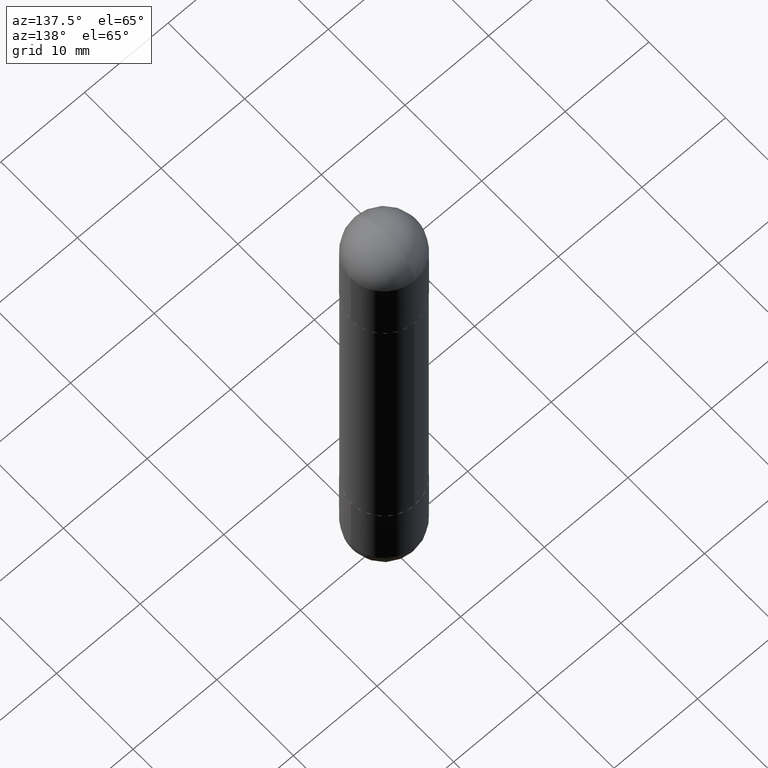
[diagram: clean part render]
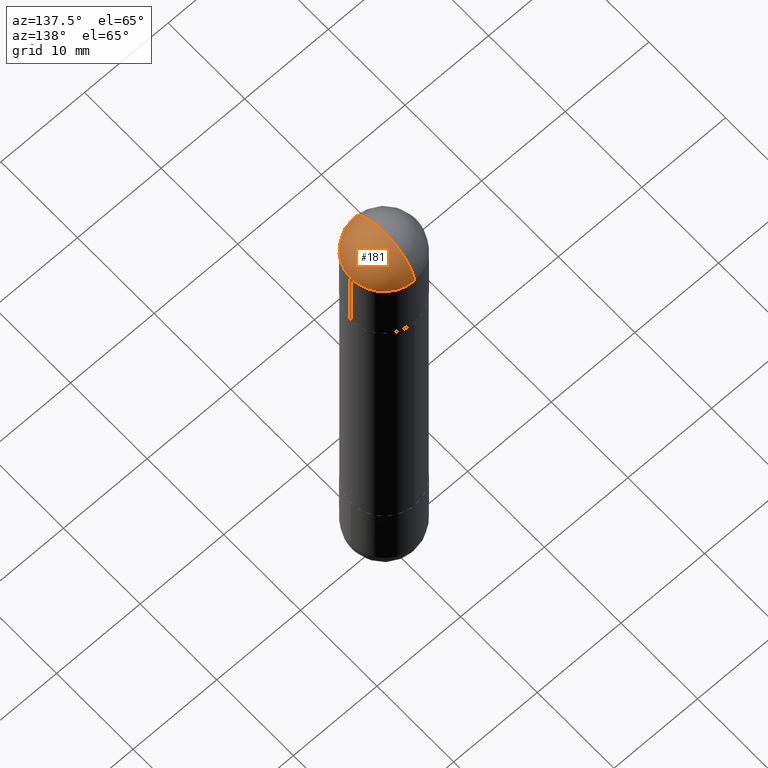
[diagram: same view with one face highlighted and labeled with its STEP entity id]
A machine part, auxiliary view. The second image highlights one B-rep face of the part: STEP entity #181.
In plain terms, the highlighted spherical surface has radius 3.9688 mm.
Its self-contained STEP definition (entity closure, byte-faithful):
#14 = EDGE_LOOP ( 'NONE', ( #188, #375, #128, #423 ) ) ;
#15 = DIRECTION ( 'NONE',  ( -1.000000000000000000, 6.982962677686265922E-15, 4.883557194083112340E-29 ) ) ;
#36 = DIRECTION ( 'NONE',  ( 2.445468806185136597E-29, -3.491481338843145583E-15, 1.000000000000000000 ) ) ;
#45 = CARTESIAN_POINT ( 'NONE',  ( 5.400447736582527652E-29, -8.657341756053672891E-15, -0.1562500000000005551 ) ) ;
#108 = CARTESIAN_POINT ( 'NONE',  ( -1.071952812151746981E-15, -0.1562500000000085487, -0.1562500000000011102 ) ) ;
#128 = ORIENTED_EDGE ( 'NONE', *, *, #641, .T. ) ;
#130 = VERTEX_POINT ( 'NONE', #722 ) ;
#132 = CIRCLE ( 'NONE', #249, 0.1562500000000000000 ) ;
#140 = CARTESIAN_POINT ( 'NONE',  ( 5.400447736582527652E-29, -8.657341756053672891E-15, -0.1562500000000005551 ) ) ;
#164 = DIRECTION ( 'NONE',  ( 6.982962677686265922E-15, 1.000000000000000000, 3.496765431890251398E-15 ) ) ;
#181 = ADVANCED_FACE ( 'NONE', ( #599 ), #603, .T. ) ;
#186 = VERTEX_POINT ( 'NONE', #108 ) ;
#188 = ORIENTED_EDGE ( 'NONE', *, *, #424, .F. ) ;
#194 = DIRECTION ( 'NONE',  ( 6.860497997771530774E-15, 1.000000000000000000, 0.000000000000000000 ) ) ;
#245 = DIRECTION ( 'NONE',  ( 2.445468806185136597E-29, -3.491481338843145583E-15, 1.000000000000000000 ) ) ;
#249 = AXIS2_PLACEMENT_3D ( 'NONE', #737, #245, #546 ) ;
#288 = CARTESIAN_POINT ( 'NONE',  ( 0.1562500000000000000, -8.674148951188436448E-15, -0.1562500000000005551 ) ) ;
#338 = CARTESIAN_POINT ( 'NONE',  ( 1.091087918388535577E-15, 0.1562499999999916733, -0.1562500000000000000 ) ) ;
#375 = ORIENTED_EDGE ( 'NONE', *, *, #548, .T. ) ;
#390 = CIRCLE ( 'NONE', #594, 0.1562500000000002498 ) ;
#423 = ORIENTED_EDGE ( 'NONE', *, *, #760, .T. ) ;
#424 = EDGE_CURVE ( 'NONE', #130, #686, #452, .T. ) ;
#452 = CIRCLE ( 'NONE', #529, 0.1562500000000002498 ) ;
#508 = CIRCLE ( 'NONE', #782, 0.1562500000000000000 ) ;
#529 = AXIS2_PLACEMENT_3D ( 'NONE', #691, #15, #633 ) ;
#546 = DIRECTION ( 'NONE',  ( 1.000000000000000000, -6.982962677686262766E-15, 0.000000000000000000 ) ) ;
#548 = EDGE_CURVE ( 'NONE', #130, #186, #390, .T. ) ;
#564 = VERTEX_POINT ( 'NONE', #288 ) ;
#576 = DIRECTION ( 'NONE',  ( 1.000000000000000000, -6.860497997771530774E-15, -4.840798879624142912E-29 ) ) ;
#584 = AXIS2_PLACEMENT_3D ( 'NONE', #45, #729, #164 ) ;
#594 = AXIS2_PLACEMENT_3D ( 'NONE', #140, #576, #194 ) ;
#599 = FACE_OUTER_BOUND ( 'NONE', #14, .T. ) ;
#603 = SPHERICAL_SURFACE ( 'NONE', #584, 0.1562500000000002498 ) ;
#633 = DIRECTION ( 'NONE',  ( -6.982962677686265922E-15, -1.000000000000000000, 0.000000000000000000 ) ) ;
#641 = EDGE_CURVE ( 'NONE', #186, #564, #508, .T. ) ;
#686 = VERTEX_POINT ( 'NONE', #338 ) ;
#691 = CARTESIAN_POINT ( 'NONE',  ( 5.400447736582527652E-29, -8.657341756053672891E-15, -0.1562500000000005551 ) ) ;
#721 = DIRECTION ( 'NONE',  ( 1.000000000000000000, -6.982962677686262766E-15, 0.000000000000000000 ) ) ;
#722 = CARTESIAN_POINT ( 'NONE',  ( 5.789233224183170584E-29, -9.193318162129576161E-15, -3.073328992872296367E-16 ) ) ;
#729 = DIRECTION ( 'NONE',  ( 1.000000000000000000, -6.982962677686265922E-15, -4.883557194083112340E-29 ) ) ;
#737 = CARTESIAN_POINT ( 'NONE',  ( 5.731567514496413899E-29, -8.183159387913622595E-15, -0.1562500000000005551 ) ) ;
#760 = EDGE_CURVE ( 'NONE', #564, #686, #132, .T. ) ;
#782 = AXIS2_PLACEMENT_3D ( 'NONE', #789, #36, #721 ) ;
#789 = CARTESIAN_POINT ( 'NONE',  ( 5.731567514496413899E-29, -8.183159387913622595E-15, -0.1562500000000005551 ) ) ;